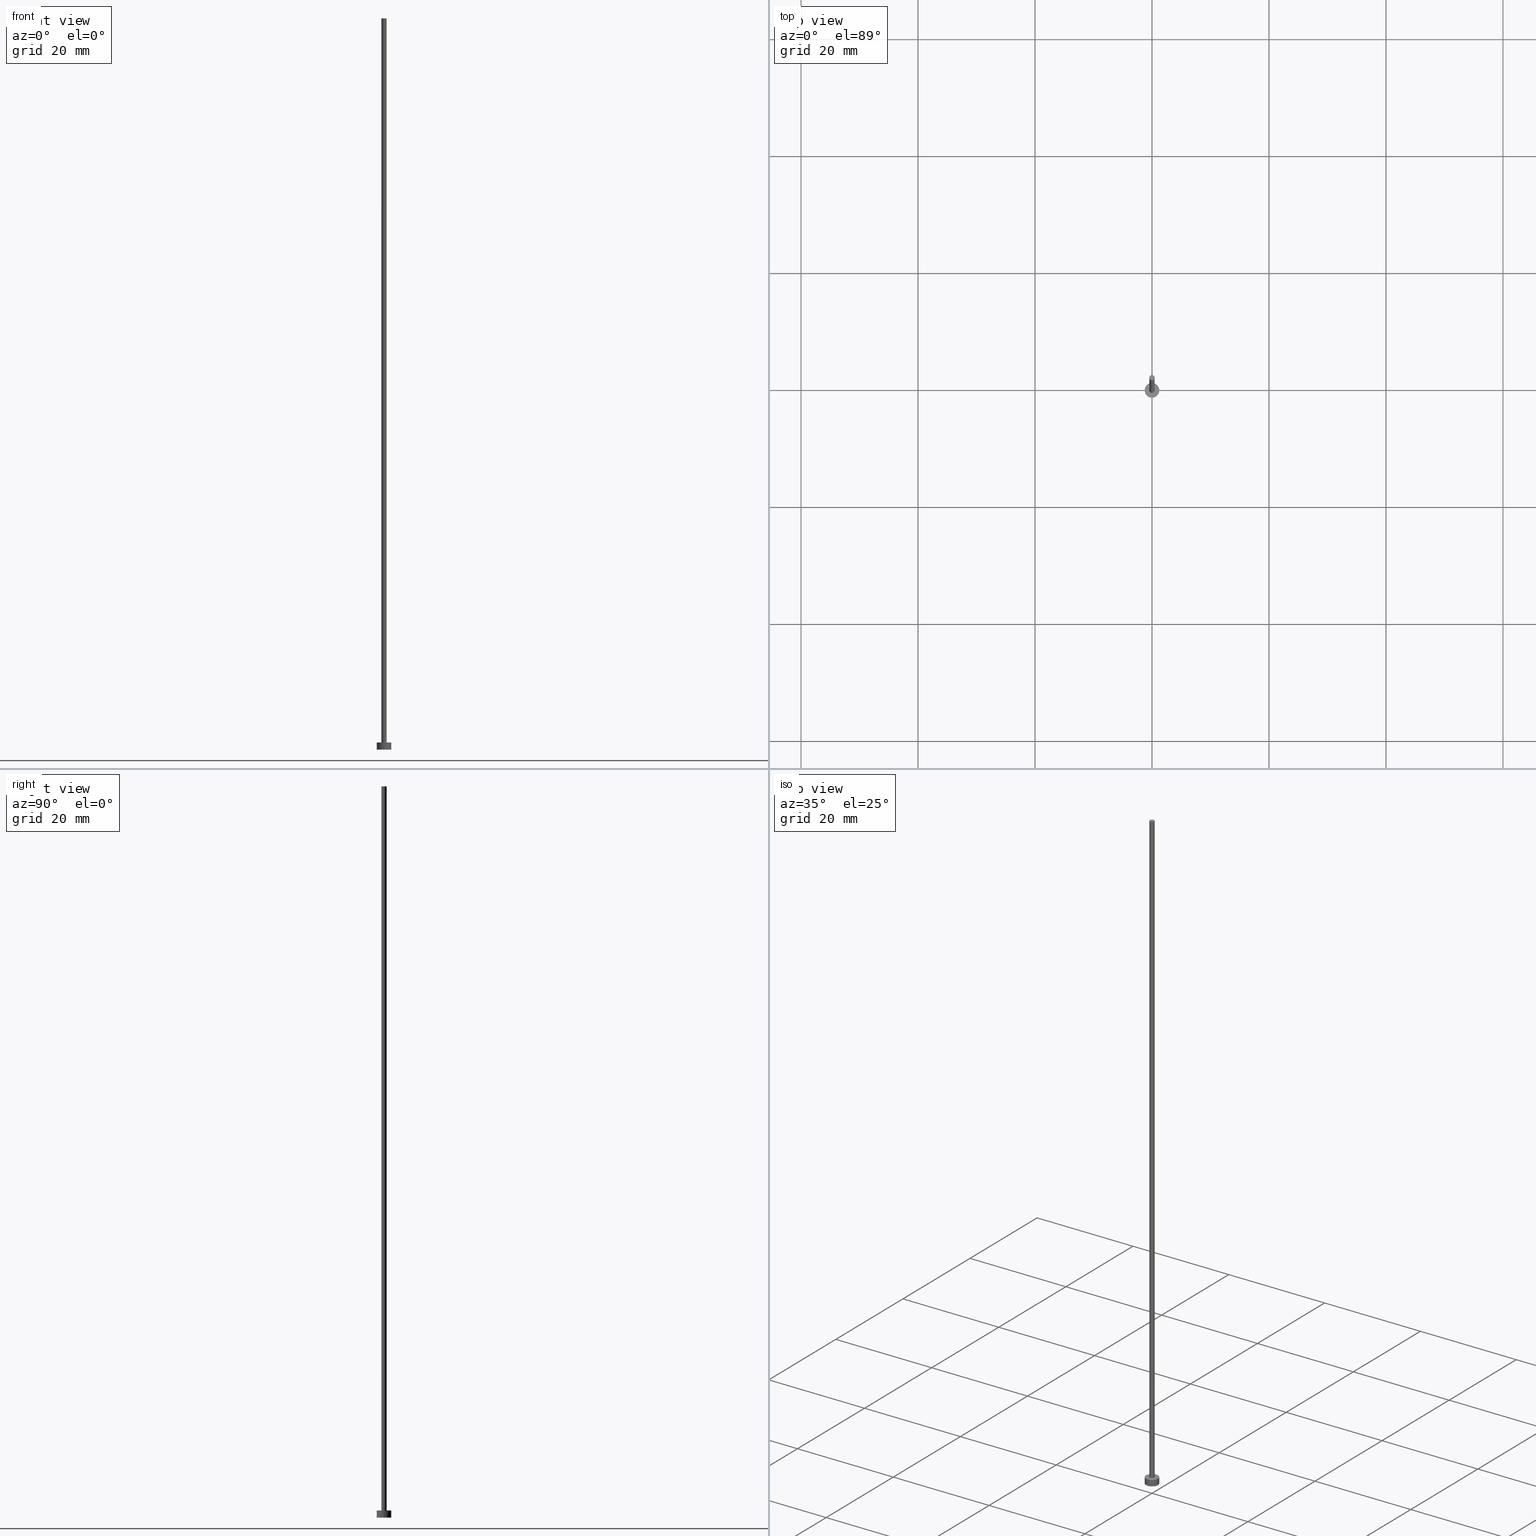
[diagram: canonical four-view strip — front | top / right | iso, engineering-drawing reading convention]
A machine part, canonical four-view strip (front | top / right | iso — engineering-drawing reading convention). The complete STEP part file that produces these views, byte-faithful:
ISO-10303-21;
HEADER;
FILE_DESCRIPTION (( 'STEP AP203' ),
    '1' );
FILE_NAME ('5243.STEP',
    '2026-02-06T12:44:05',
    ( '' ),
    ( '' ),
    'SwSTEP 2.0',
    'SolidWorks 2019',
    '' );
FILE_SCHEMA (( 'CONFIG_CONTROL_DESIGN' ));
ENDSEC;

DATA;
#1 = ORIENTED_EDGE ( 'NONE', *, *, #31, .F. ) ;
#2 = DATE_TIME_ROLE ( 'creation_date' ) ;
#3 = ADVANCED_FACE ( 'NONE', ( #171 ), #95, .F. ) ;
#4 = EDGE_LOOP ( 'NONE', ( #1, #77, #75, #127 ) ) ;
#5 = ORIENTED_EDGE ( 'NONE', *, *, #83, .T. ) ;
#6 = APPLICATION_CONTEXT ( 'configuration controlled 3d designs of mechanical parts and assemblies' ) ;
#7 = CARTESIAN_POINT ( 'NONE',  ( 0.000000000000000000, 0.000000000000000000, 125.0000000000000000 ) ) ;
#8 = FACE_OUTER_BOUND ( 'NONE', #137, .T. ) ;
#9 = DIRECTION ( 'NONE',  ( -0.000000000000000000, -0.000000000000000000, -1.000000000000000000 ) ) ;
#10 = PRODUCT_DEFINITION_FORMATION_WITH_SPECIFIED_SOURCE ( 'LIBOVOLN�', '', #241, .NOT_KNOWN. ) ;
#11 = ORIENTED_EDGE ( 'NONE', *, *, #167, .F. ) ;
#12 = CARTESIAN_POINT ( 'NONE',  ( -1.250000000000000000, 0.000000000000000000, 0.000000000000000000 ) ) ;
#13 = DIRECTION ( 'NONE',  ( 1.000000000000000000, 0.000000000000000000, -0.000000000000000000 ) ) ;
#14 = CARTESIAN_POINT ( 'NONE',  ( 0.000000000000000000, 0.000000000000000000, 1.199999999999999956 ) ) ;
#15 = VECTOR ( 'NONE', #37, 1000.000000000000000 ) ;
#16 = PRODUCT_RELATED_PRODUCT_CATEGORY ( 'detail', '', ( #241 ) ) ;
#17 = CARTESIAN_POINT ( 'NONE',  ( 0.000000000000000000, 0.000000000000000000, 0.000000000000000000 ) ) ;
#18 =( GEOMETRIC_REPRESENTATION_CONTEXT ( 3 ) GLOBAL_UNCERTAINTY_ASSIGNED_CONTEXT ( ( #193 ) ) GLOBAL_UNIT_ASSIGNED_CONTEXT ( ( #184, #170, #57 ) ) REPRESENTATION_CONTEXT ( 'NONE', 'WORKASPACE' ) );
#19 = COORDINATED_UNIVERSAL_TIME_OFFSET ( 1, 0, .AHEAD. ) ;
#20 = APPROVAL ( #210, 'NEUR�EN�' ) ;
#21 = CALENDAR_DATE ( 2026, 6, 2 ) ;
#22 = AXIS2_PLACEMENT_3D ( 'NONE', #40, #53, #158 ) ;
#23 = DATE_AND_TIME ( #233, #97 ) ;
#24 = APPROVAL_STATUS ( 'not_yet_approved' ) ;
#25 = PERSON_AND_ORGANIZATION ( #141, #42 ) ;
#26 = ADVANCED_FACE ( 'NONE', ( #8 ), #134, .T. ) ;
#27 = PRODUCT_DEFINITION_SHAPE ( 'NONE', 'NONE',  #148 ) ;
#28 = CARTESIAN_POINT ( 'NONE',  ( -0.4500000000000000111, 0.000000000000000000, 125.0000000000000000 ) ) ;
#29 = CARTESIAN_POINT ( 'NONE',  ( -1.250000000000000000, 0.000000000000000000, 1.199999999999999956 ) ) ;
#30 = DIRECTION ( 'NONE',  ( 0.000000000000000000, 0.000000000000000000, 1.000000000000000000 ) ) ;
#31 = EDGE_CURVE ( 'NONE', #89, #181, #215, .T. ) ;
#32 = ORIENTED_EDGE ( 'NONE', *, *, #31, .T. ) ;
#33 = DIRECTION ( 'NONE',  ( 1.000000000000000000, 0.000000000000000000, 0.000000000000000000 ) ) ;
#34 = LOCAL_TIME ( 13, 44, 5.000000000000000000, #19 ) ;
#35 = ORIENTED_EDGE ( 'NONE', *, *, #128, .F. ) ;
#36 = DIRECTION ( 'NONE',  ( 0.000000000000000000, 0.000000000000000000, 1.000000000000000000 ) ) ;
#37 = DIRECTION ( 'NONE',  ( -0.000000000000000000, -0.000000000000000000, -1.000000000000000000 ) ) ;
#38 = FACE_OUTER_BOUND ( 'NONE', #117, .T. ) ;
#39 = AXIS2_PLACEMENT_3D ( 'NONE', #156, #36, #80 ) ;
#40 = CARTESIAN_POINT ( 'NONE',  ( 0.000000000000000000, 0.000000000000000000, 1.199999999999999956 ) ) ;
#41 = VECTOR ( 'NONE', #138, 1000.000000000000000 ) ;
#42 = ORGANIZATION ( 'NEUR�EN�', 'NEUR�EN�', '' ) ;
#43 = EDGE_LOOP ( 'NONE', ( #35, #168, #119, #92 ) ) ;
#44 = VERTEX_POINT ( 'NONE', #157 ) ;
#45 = DIRECTION ( 'NONE',  ( 1.000000000000000000, 0.000000000000000000, 0.000000000000000000 ) ) ;
#46 = EDGE_CURVE ( 'NONE', #181, #89, #59, .T. ) ;
#47 = LINE ( 'NONE', #29, #212 ) ;
#48 = LINE ( 'NONE', #78, #41 ) ;
#49 = CARTESIAN_POINT ( 'NONE',  ( 0.000000000000000000, 0.000000000000000000, 0.000000000000000000 ) ) ;
#50 = MANIFOLD_SOLID_BREP ( 'P�idat vysunut�m3', #61 ) ;
#51 = ORIENTED_EDGE ( 'NONE', *, *, #111, .T. ) ;
#52 = AXIS2_PLACEMENT_3D ( 'NONE', #79, #149, #188 ) ;
#53 = DIRECTION ( 'NONE',  ( 0.000000000000000000, 0.000000000000000000, 1.000000000000000000 ) ) ;
#54 = LOCAL_TIME ( 13, 44, 5.000000000000000000, #211 ) ;
#55 = CC_DESIGN_PERSON_AND_ORGANIZATION_ASSIGNMENT ( #213, #194, ( #10 ) ) ;
#56 = ORIENTED_EDGE ( 'NONE', *, *, #140, .T. ) ;
#57 =( NAMED_UNIT ( * ) SI_UNIT ( $, .STERADIAN. ) SOLID_ANGLE_UNIT ( ) );
#58 = CARTESIAN_POINT ( 'NONE',  ( 1.250000000000000000, 1.530808498934191571E-16, 1.199999999999999956 ) ) ;
#59 = CIRCLE ( 'NONE', #130, 0.4500000000000000111 ) ;
#60 = DATE_TIME_ROLE ( 'classification_date' ) ;
#61 = CLOSED_SHELL ( 'NONE', ( #209, #72, #26, #186, #3, #98, #146 ) ) ;
#62 = EDGE_CURVE ( 'NONE', #181, #200, #207, .T. ) ;
#63 = CALENDAR_DATE ( 2026, 6, 2 ) ;
#64 = SECURITY_CLASSIFICATION_LEVEL ( 'unclassified' ) ;
#65 = APPROVAL ( #254, 'NEUR�EN�' ) ;
#66 = CC_DESIGN_APPROVAL ( #82, ( #148 ) ) ;
#67 = APPROVAL_DATE_TIME ( #23, #82 ) ;
#68 = APPLICATION_PROTOCOL_DEFINITION ( 'international standard', 'config_control_design', 1994, #6 ) ;
#69 = CC_DESIGN_PERSON_AND_ORGANIZATION_ASSIGNMENT ( #135, #204, ( #241 ) ) ;
#70 = CIRCLE ( 'NONE', #237, 0.4500000000000000111 ) ;
#71 = DIRECTION ( 'NONE',  ( 0.000000000000000000, 0.000000000000000000, 1.000000000000000000 ) ) ;
#72 = ADVANCED_FACE ( 'NONE', ( #219 ), #121, .T. ) ;
#73 = CARTESIAN_POINT ( 'NONE',  ( 0.4500000000000000111, 5.510910596163088939E-17, 125.0000000000000000 ) ) ;
#74 = APPLICATION_PROTOCOL_DEFINITION ( 'international standard', 'config_control_design', 1994, #113 ) ;
#75 = ORIENTED_EDGE ( 'NONE', *, *, #129, .T. ) ;
#76 = MECHANICAL_CONTEXT ( 'NONE', #113, 'mechanical' ) ;
#77 = ORIENTED_EDGE ( 'NONE', *, *, #128, .T. ) ;
#78 = CARTESIAN_POINT ( 'NONE',  ( 1.250000000000000000, 1.530808498934191571E-16, 1.199999999999999956 ) ) ;
#79 = CARTESIAN_POINT ( 'NONE',  ( 0.000000000000000000, 0.000000000000000000, 125.0000000000000000 ) ) ;
#80 = DIRECTION ( 'NONE',  ( 1.000000000000000000, 0.000000000000000000, -0.000000000000000000 ) ) ;
#81 = DIRECTION ( 'NONE',  ( 1.000000000000000000, 0.000000000000000000, 0.000000000000000000 ) ) ;
#82 = APPROVAL ( #24, 'NEUR�EN�' ) ;
#83 = EDGE_CURVE ( 'NONE', #153, #44, #162, .T. ) ;
#84 = AXIS2_PLACEMENT_3D ( 'NONE', #17, #154, #208 ) ;
#85 = APPROVAL_PERSON_ORGANIZATION ( #177, #20, #86 ) ;
#86 = APPROVAL_ROLE ( '' ) ;
#87 = AXIS2_PLACEMENT_3D ( 'NONE', #206, #187, #253 ) ;
#88 = CC_DESIGN_SECURITY_CLASSIFICATION ( #196, ( #10 ) ) ;
#89 = VERTEX_POINT ( 'NONE', #73 ) ;
#90 = DIRECTION ( 'NONE',  ( -0.000000000000000000, -0.000000000000000000, -1.000000000000000000 ) ) ;
#91 = AXIS2_PLACEMENT_3D ( 'NONE', #164, #240, #45 ) ;
#92 = ORIENTED_EDGE ( 'NONE', *, *, #226, .T. ) ;
#93 = FACE_OUTER_BOUND ( 'NONE', #4, .T. ) ;
#94 = DIRECTION ( 'NONE',  ( -1.000000000000000000, 0.000000000000000000, 0.000000000000000000 ) ) ;
#95 = PLANE ( 'NONE',  #199 ) ;
#96 = FACE_BOUND ( 'NONE', #110, .T. ) ;
#97 = LOCAL_TIME ( 13, 44, 5.000000000000000000, #104 ) ;
#98 = ADVANCED_FACE ( 'NONE', ( #131 ), #115, .T. ) ;
#99 = APPROVAL_ROLE ( '' ) ;
#100 = DESIGN_CONTEXT ( 'detailed design', #6, 'design' ) ;
#101 = EDGE_CURVE ( 'NONE', #44, #169, #47, .T. ) ;
#102 = PERSON_AND_ORGANIZATION ( #141, #42 ) ;
#103 = DATE_AND_TIME ( #124, #54 ) ;
#104 = COORDINATED_UNIVERSAL_TIME_OFFSET ( 1, 0, .AHEAD. ) ;
#105 = CC_DESIGN_DATE_AND_TIME_ASSIGNMENT ( #126, #2, ( #148 ) ) ;
#106 = COORDINATED_UNIVERSAL_TIME_OFFSET ( 1, 0, .AHEAD. ) ;
#107 = EDGE_LOOP ( 'NONE', ( #11, #112 ) ) ;
#108 = APPROVAL_DATE_TIME ( #195, #20 ) ;
#109 = AXIS2_PLACEMENT_3D ( 'NONE', #14, #245, #218 ) ;
#110 = EDGE_LOOP ( 'NONE', ( #248, #223 ) ) ;
#111 = EDGE_CURVE ( 'NONE', #217, #169, #142, .T. ) ;
#112 = ORIENTED_EDGE ( 'NONE', *, *, #111, .F. ) ;
#113 = APPLICATION_CONTEXT ( 'configuration controlled 3d designs of mechanical parts and assemblies' ) ;
#114 = CC_DESIGN_DATE_AND_TIME_ASSIGNMENT ( #229, #60, ( #196 ) ) ;
#115 = CYLINDRICAL_SURFACE ( 'NONE', #243, 0.4500000000000000111 ) ;
#116 = VERTEX_POINT ( 'NONE', #159 ) ;
#117 = EDGE_LOOP ( 'NONE', ( #201, #5 ) ) ;
#118 = DIRECTION ( 'NONE',  ( 0.000000000000000000, 0.000000000000000000, 1.000000000000000000 ) ) ;
#119 = ORIENTED_EDGE ( 'NONE', *, *, #62, .T. ) ;
#120 = CARTESIAN_POINT ( 'NONE',  ( -0.4500000000000000111, 0.000000000000000000, 125.0000000000000000 ) ) ;
#121 = CYLINDRICAL_SURFACE ( 'NONE', #109, 1.250000000000000000 ) ;
#122 = PLANE ( 'NONE',  #39 ) ;
#123 = PLANE ( 'NONE',  #175 ) ;
#124 = CALENDAR_DATE ( 2026, 6, 2 ) ;
#125 = AXIS2_PLACEMENT_3D ( 'NONE', #139, #221, #94 ) ;
#126 = DATE_AND_TIME ( #63, #230 ) ;
#127 = ORIENTED_EDGE ( 'NONE', *, *, #62, .F. ) ;
#128 = EDGE_CURVE ( 'NONE', #89, #116, #227, .T. ) ;
#129 = EDGE_CURVE ( 'NONE', #116, #200, #190, .T. ) ;
#130 = AXIS2_PLACEMENT_3D ( 'NONE', #225, #71, #242 ) ;
#131 = FACE_OUTER_BOUND ( 'NONE', #43, .T. ) ;
#132 = ORIENTED_EDGE ( 'NONE', *, *, #83, .F. ) ;
#133 = DIRECTION ( 'NONE',  ( 1.000000000000000000, 0.000000000000000000, -0.000000000000000000 ) ) ;
#134 = CYLINDRICAL_SURFACE ( 'NONE', #125, 1.250000000000000000 ) ;
#135 = PERSON_AND_ORGANIZATION ( #141, #42 ) ;
#136 = CIRCLE ( 'NONE', #22, 1.250000000000000000 ) ;
#137 = EDGE_LOOP ( 'NONE', ( #236, #155, #179, #234 ) ) ;
#138 = DIRECTION ( 'NONE',  ( -0.000000000000000000, -0.000000000000000000, -1.000000000000000000 ) ) ;
#139 = CARTESIAN_POINT ( 'NONE',  ( 0.000000000000000000, 0.000000000000000000, 1.199999999999999956 ) ) ;
#140 = EDGE_CURVE ( 'NONE', #153, #217, #48, .T. ) ;
#141 = PERSON ( 'NEUR�EN�', 'NEUR�EN�', 'NEUR�EN�', ('NEUR�EN�'), ('NEUR�EN�'), ('NEUR�EN�') ) ;
#142 = CIRCLE ( 'NONE', #145, 1.250000000000000000 ) ;
#143 = COORDINATED_UNIVERSAL_TIME_OFFSET ( 1, 0, .AHEAD. ) ;
#144 = APPROVAL_ROLE ( '' ) ;
#145 = AXIS2_PLACEMENT_3D ( 'NONE', #49, #173, #81 ) ;
#146 = ADVANCED_FACE ( 'NONE', ( #228 ), #122, .T. ) ;
#147 = APPROVAL_PERSON_ORGANIZATION ( #102, #82, #99 ) ;
#148 = PRODUCT_DEFINITION ( 'NEZN�M�', '', #10, #100 ) ;
#149 = DIRECTION ( 'NONE',  ( 0.000000000000000000, 0.000000000000000000, 1.000000000000000000 ) ) ;
#150 = LOCAL_TIME ( 13, 44, 5.000000000000000000, #143 ) ;
#151 = DIRECTION ( 'NONE',  ( -1.000000000000000000, 0.000000000000000000, 0.000000000000000000 ) ) ;
#152 = DIRECTION ( 'NONE',  ( 0.000000000000000000, 0.000000000000000000, 1.000000000000000000 ) ) ;
#153 = VERTEX_POINT ( 'NONE', #58 ) ;
#154 = DIRECTION ( 'NONE',  ( 0.000000000000000000, 0.000000000000000000, 1.000000000000000000 ) ) ;
#155 = ORIENTED_EDGE ( 'NONE', *, *, #246, .F. ) ;
#156 = CARTESIAN_POINT ( 'NONE',  ( 0.000000000000000000, 0.000000000000000000, 125.0000000000000000 ) ) ;
#157 = CARTESIAN_POINT ( 'NONE',  ( -1.250000000000000000, 0.000000000000000000, 1.199999999999999956 ) ) ;
#158 = DIRECTION ( 'NONE',  ( 1.000000000000000000, 0.000000000000000000, 0.000000000000000000 ) ) ;
#159 = CARTESIAN_POINT ( 'NONE',  ( 0.4500000000000000111, 5.510910596163088939E-17, 1.199999999999999956 ) ) ;
#160 = AXIS2_PLACEMENT_3D ( 'NONE', #247, #152, #220 ) ;
#161 = CALENDAR_DATE ( 2026, 6, 2 ) ;
#162 = CIRCLE ( 'NONE', #91, 1.250000000000000000 ) ;
#163 = CC_DESIGN_APPROVAL ( #65, ( #196 ) ) ;
#164 = CARTESIAN_POINT ( 'NONE',  ( 0.000000000000000000, 0.000000000000000000, 1.199999999999999956 ) ) ;
#165 = CARTESIAN_POINT ( 'NONE',  ( 0.000000000000000000, 0.000000000000000000, 0.000000000000000000 ) ) ;
#166 = VECTOR ( 'NONE', #9, 1000.000000000000000 ) ;
#167 = EDGE_CURVE ( 'NONE', #169, #217, #178, .T. ) ;
#168 = ORIENTED_EDGE ( 'NONE', *, *, #46, .F. ) ;
#169 = VERTEX_POINT ( 'NONE', #12 ) ;
#170 =( NAMED_UNIT ( * ) PLANE_ANGLE_UNIT ( ) SI_UNIT ( $, .RADIAN. ) );
#171 = FACE_OUTER_BOUND ( 'NONE', #107, .T. ) ;
#172 = CARTESIAN_POINT ( 'NONE',  ( 0.000000000000000000, 0.000000000000000000, 125.0000000000000000 ) ) ;
#173 = DIRECTION ( 'NONE',  ( 0.000000000000000000, 0.000000000000000000, 1.000000000000000000 ) ) ;
#174 = PERSON_AND_ORGANIZATION ( #141, #42 ) ;
#175 = AXIS2_PLACEMENT_3D ( 'NONE', #244, #118, #133 ) ;
#176 = SHAPE_DEFINITION_REPRESENTATION ( #27, #180 ) ;
#177 = PERSON_AND_ORGANIZATION ( #141, #42 ) ;
#178 = CIRCLE ( 'NONE', #84, 1.250000000000000000 ) ;
#179 = ORIENTED_EDGE ( 'NONE', *, *, #101, .T. ) ;
#180 = ADVANCED_BREP_SHAPE_REPRESENTATION ( '5243', ( #50, #160 ), #18 ) ;
#181 = VERTEX_POINT ( 'NONE', #120 ) ;
#182 = DIRECTION ( 'NONE',  ( -0.000000000000000000, -0.000000000000000000, -1.000000000000000000 ) ) ;
#183 = ORIENTED_EDGE ( 'NONE', *, *, #46, .T. ) ;
#184 =( LENGTH_UNIT ( ) NAMED_UNIT ( * ) SI_UNIT ( .MILLI., .METRE. ) );
#185 = DIRECTION ( 'NONE',  ( 0.000000000000000000, 0.000000000000000000, 1.000000000000000000 ) ) ;
#186 = ADVANCED_FACE ( 'NONE', ( #96, #38 ), #123, .T. ) ;
#187 = DIRECTION ( 'NONE',  ( 0.000000000000000000, 0.000000000000000000, 1.000000000000000000 ) ) ;
#188 = DIRECTION ( 'NONE',  ( 1.000000000000000000, 0.000000000000000000, 0.000000000000000000 ) ) ;
#189 = CYLINDRICAL_SURFACE ( 'NONE', #203, 0.4500000000000000111 ) ;
#190 = CIRCLE ( 'NONE', #87, 0.4500000000000000111 ) ;
#191 = APPROVAL_PERSON_ORGANIZATION ( #174, #65, #144 ) ;
#192 = CARTESIAN_POINT ( 'NONE',  ( -0.4500000000000000111, 0.000000000000000000, 1.199999999999999956 ) ) ;
#193 = UNCERTAINTY_MEASURE_WITH_UNIT (LENGTH_MEASURE( 1.000000000000000082E-05 ), #184, 'distance_accuracy_value', 'NONE');
#194 = PERSON_AND_ORGANIZATION_ROLE ( 'creator' ) ;
#195 = DATE_AND_TIME ( #161, #34 ) ;
#196 = SECURITY_CLASSIFICATION ( '', '', #64 ) ;
#197 = CC_DESIGN_PERSON_AND_ORGANIZATION_ASSIGNMENT ( #232, #231, ( #10 ) ) ;
#198 = PERSON_AND_ORGANIZATION_ROLE ( 'creator' ) ;
#199 = AXIS2_PLACEMENT_3D ( 'NONE', #165, #185, #13 ) ;
#200 = VERTEX_POINT ( 'NONE', #192 ) ;
#201 = ORIENTED_EDGE ( 'NONE', *, *, #246, .T. ) ;
#202 = CARTESIAN_POINT ( 'NONE',  ( 0.000000000000000000, 0.000000000000000000, 1.199999999999999956 ) ) ;
#203 = AXIS2_PLACEMENT_3D ( 'NONE', #172, #251, #249 ) ;
#204 = PERSON_AND_ORGANIZATION_ROLE ( 'design_owner' ) ;
#205 = EDGE_LOOP ( 'NONE', ( #183, #32 ) ) ;
#206 = CARTESIAN_POINT ( 'NONE',  ( 0.000000000000000000, 0.000000000000000000, 1.199999999999999956 ) ) ;
#207 = LINE ( 'NONE', #28, #15 ) ;
#208 = DIRECTION ( 'NONE',  ( 1.000000000000000000, 0.000000000000000000, 0.000000000000000000 ) ) ;
#209 = ADVANCED_FACE ( 'NONE', ( #93 ), #189, .T. ) ;
#210 = APPROVAL_STATUS ( 'not_yet_approved' ) ;
#211 = COORDINATED_UNIVERSAL_TIME_OFFSET ( 1, 0, .AHEAD. ) ;
#212 = VECTOR ( 'NONE', #182, 1000.000000000000000 ) ;
#213 = PERSON_AND_ORGANIZATION ( #141, #42 ) ;
#214 = PERSON_AND_ORGANIZATION_ROLE ( 'classification_officer' ) ;
#215 = CIRCLE ( 'NONE', #52, 0.4500000000000000111 ) ;
#216 = ORIENTED_EDGE ( 'NONE', *, *, #101, .F. ) ;
#217 = VERTEX_POINT ( 'NONE', #224 ) ;
#218 = DIRECTION ( 'NONE',  ( -1.000000000000000000, 0.000000000000000000, 0.000000000000000000 ) ) ;
#219 = FACE_OUTER_BOUND ( 'NONE', #250, .T. ) ;
#220 = DIRECTION ( 'NONE',  ( 1.000000000000000000, 0.000000000000000000, 0.000000000000000000 ) ) ;
#221 = DIRECTION ( 'NONE',  ( -0.000000000000000000, -0.000000000000000000, -1.000000000000000000 ) ) ;
#222 = CC_DESIGN_PERSON_AND_ORGANIZATION_ASSIGNMENT ( #235, #214, ( #196 ) ) ;
#223 = ORIENTED_EDGE ( 'NONE', *, *, #129, .F. ) ;
#224 = CARTESIAN_POINT ( 'NONE',  ( 1.250000000000000000, 1.530808498934191571E-16, 0.000000000000000000 ) ) ;
#225 = CARTESIAN_POINT ( 'NONE',  ( 0.000000000000000000, 0.000000000000000000, 125.0000000000000000 ) ) ;
#226 = EDGE_CURVE ( 'NONE', #200, #116, #70, .T. ) ;
#227 = LINE ( 'NONE', #252, #166 ) ;
#228 = FACE_OUTER_BOUND ( 'NONE', #205, .T. ) ;
#229 = DATE_AND_TIME ( #21, #150 ) ;
#230 = LOCAL_TIME ( 13, 44, 5.000000000000000000, #106 ) ;
#231 = PERSON_AND_ORGANIZATION_ROLE ( 'design_supplier' ) ;
#232 = PERSON_AND_ORGANIZATION ( #141, #42 ) ;
#233 = CALENDAR_DATE ( 2026, 6, 2 ) ;
#234 = ORIENTED_EDGE ( 'NONE', *, *, #167, .T. ) ;
#235 = PERSON_AND_ORGANIZATION ( #141, #42 ) ;
#236 = ORIENTED_EDGE ( 'NONE', *, *, #140, .F. ) ;
#237 = AXIS2_PLACEMENT_3D ( 'NONE', #202, #30, #33 ) ;
#238 = CC_DESIGN_APPROVAL ( #20, ( #10 ) ) ;
#239 = CC_DESIGN_PERSON_AND_ORGANIZATION_ASSIGNMENT ( #25, #198, ( #148 ) ) ;
#240 = DIRECTION ( 'NONE',  ( 0.000000000000000000, 0.000000000000000000, 1.000000000000000000 ) ) ;
#241 = PRODUCT ( '5243', '5243', '', ( #76 ) ) ;
#242 = DIRECTION ( 'NONE',  ( 1.000000000000000000, 0.000000000000000000, 0.000000000000000000 ) ) ;
#243 = AXIS2_PLACEMENT_3D ( 'NONE', #7, #90, #151 ) ;
#244 = CARTESIAN_POINT ( 'NONE',  ( 0.000000000000000000, 0.000000000000000000, 1.199999999999999956 ) ) ;
#245 = DIRECTION ( 'NONE',  ( -0.000000000000000000, -0.000000000000000000, -1.000000000000000000 ) ) ;
#246 = EDGE_CURVE ( 'NONE', #44, #153, #136, .T. ) ;
#247 = CARTESIAN_POINT ( 'NONE',  ( 0.000000000000000000, 0.000000000000000000, 0.000000000000000000 ) ) ;
#248 = ORIENTED_EDGE ( 'NONE', *, *, #226, .F. ) ;
#249 = DIRECTION ( 'NONE',  ( -1.000000000000000000, 0.000000000000000000, 0.000000000000000000 ) ) ;
#250 = EDGE_LOOP ( 'NONE', ( #132, #56, #51, #216 ) ) ;
#251 = DIRECTION ( 'NONE',  ( -0.000000000000000000, -0.000000000000000000, -1.000000000000000000 ) ) ;
#252 = CARTESIAN_POINT ( 'NONE',  ( 0.4500000000000000111, 5.510910596163088939E-17, 125.0000000000000000 ) ) ;
#253 = DIRECTION ( 'NONE',  ( 1.000000000000000000, 0.000000000000000000, 0.000000000000000000 ) ) ;
#254 = APPROVAL_STATUS ( 'not_yet_approved' ) ;
#255 = APPROVAL_DATE_TIME ( #103, #65 ) ;
ENDSEC;
END-ISO-10303-21;
